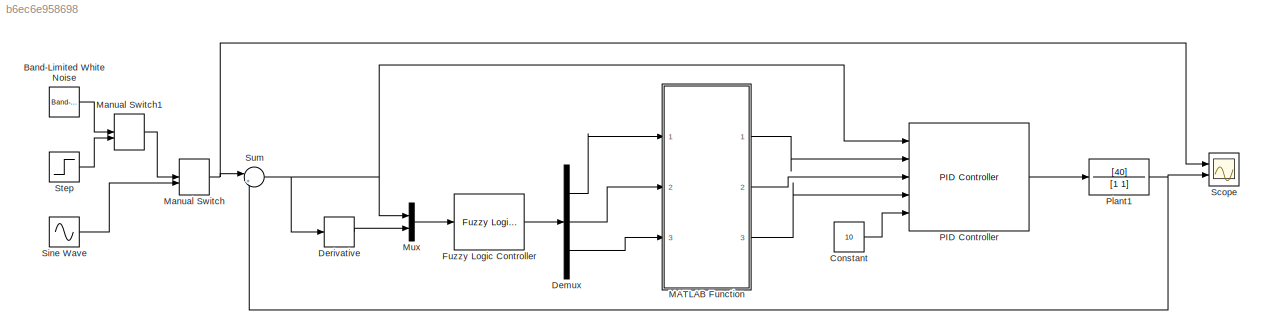
MODEL slx_b6ec6e958698
KIND model
CONFIG AbsTol = auto
CONFIG EnableMultiTasking = off
CONFIG FixedStep = auto
CONFIG MaxStep = auto
CONFIG MinStep = auto
CONFIG RelTol = 1e-3
CONFIG SampleTimeConstraint = Unconstrained
CONFIG SolverName = VariableStepAuto
CONFIG StartTime = 0.0
CONFIG StopTime = 10
BLOCK [Reference] Band-Limited White Noise  REF=simulink/Sources/Band-Limited
White Noise
  Ports = [0, 1]
  SourceBlock = simulink/Sources/Band-Limited\nWhite Noise
  SourceProductBaseCode = SL
  SourceType = Band-Limited White Noise.
BLOCK [Constant] Constant
  Value = 10
BLOCK [Demux] Demux
  Outputs = 3
  Ports = [1, 3]
BLOCK [Derivative] Derivative
BLOCK [Reference] Fuzzy Logic Controller  REF=fuzblock/Fuzzy Logic   (lib defined in mdl_858b3b3e7478)
Controller
  Ports = [1, 1]
  SourceBlock = fuzblock/Fuzzy Logic \nController
  SourceProductBaseCode = FL
  SourceType = Fuzzy Inference System
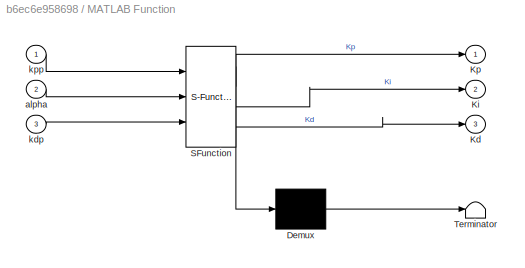
BLOCK [SubSystem] MATLAB Function
  ErrorFcn = Stateflow.Translate.translate
  PermitHierarchicalResolution = ExplicitOnly
  Ports = [3, 3]
  RequestExecContextInheritance = off
  SFBlockType = MATLAB Function
  TreatAsAtomicUnit = on
BLOCK [Demux] MATLAB Function/ Demux 
  Outputs = 1
  Ports = [1, 1]
BLOCK [S-Function] MATLAB Function/ SFunction 
  EnableBusSupport = on
  FunctionName = sf_sfun
  PortCounts = [3 4]
  Ports = [3, 4]
  SFcnIsStateOwnerBlock = off
  SFunctionDeploymentMode = off
  Tag = Stateflow S-Function 2
BLOCK [Terminator] MATLAB Function/ Terminator 
BLOCK [Outport] MATLAB Function/Kd
  Port = 3
BLOCK [Outport] MATLAB Function/Ki
  Port = 2
BLOCK [Outport] MATLAB Function/Kp
BLOCK [Inport] MATLAB Function/alpha
  Port = 2
BLOCK [Inport] MATLAB Function/kdp
  Port = 3
BLOCK [Inport] MATLAB Function/kpp
BLOCK [ManualSwitch] Manual Switch
BLOCK [ManualSwitch] Manual Switch1
  CurrentSetting = 0
BLOCK [Mux] Mux
  DisplayOption = bar
  Inputs = 2
  Ports = [2, 1]
BLOCK [Reference] PID Controller  REF=slpidlib/PID Controller
  Ports = [5, 1]
  SourceBlock = slpidlib/PID Controller
  SourceProductBaseCode = SL
  SourceType = PID 1dof
BLOCK [TransferFcn] Plant1
  Denominator = [1 1]
  Numerator = [40]
BLOCK [Scope] Scope
  Floating = off
  NumInputPorts = 2
  Ports = [2]
  ScopeSpecificationString = Simulink.scopes.TimeScopeBlockCfg('CurrentConfiguration', extmgr.ConfigurationSet(extmgr.Configuration('Core','General UI',true),extmgr.Configuration('Core','Source UI',true),extmgr.Configuration('Sources','WiredSimulink',true,'DataLoggingVariableName','ScopeData1'),extmgr.Configuration('Visuals','Time Domain',true,'SerializedDisplays',{struct('MinYLimReal','-1.8747','MaxYLimReal','1.87491','YLabe...<+1459ch>
BLOCK [Sin] Sine Wave
  Amplitude = 1.5
  Frequency = 1.5
  Ports = [0, 1]
  SampleTime = 0
BLOCK [Step] Step
  SampleTime = 0
BLOCK [Sum] Sum
  Inputs = |+-
  Ports = [2, 1]
LINE Band-Limited White Noise:1 -> Manual Switch1:1
LINE Constant:1 -> PID Controller:5
LINE Demux:1 -> MATLAB Function:1
LINE Demux:2 -> MATLAB Function:2
LINE Demux:3 -> MATLAB Function:3
LINE Derivative:1 -> Mux:2
LINE Fuzzy Logic Controller:1 -> Demux:1
LINE MATLAB Function:1 -> PID Controller:2
LINE MATLAB Function:2 -> PID Controller:3
LINE MATLAB Function:3 -> PID Controller:4
LINE Manual Switch1:1 -> Manual Switch:1
NET Manual Switch:1 -> Scope:1, Sum:1
LINE Mux:1 -> Fuzzy Logic Controller:1
LINE PID Controller:1 -> Plant1:1
NET Plant1:1 -> Scope:2, Sum:2
LINE Sine Wave:1 -> Manual Switch:2
LINE Step:1 -> Manual Switch1:2
NET Sum:1 -> Derivative:1, Mux:1, PID Controller:1
note: NET lines group one-source signal fan-out (src -> all destinations, sorted); 1:1 wires keep LINE
CHART MATLAB Function states=1 transitions=1
  STATE_LABEL 'eML_blk_kernel()'
  STATE_LABEL 'SCRIPT:\nfunction [Kp, Ki ,Kd] = invertor(kpp, alpha, kdp)\nKp = 5*kpp;\nKd = 5*kdp;\nKi = (Kp*Kp)/(alpha*Kd);\nend\n\n  \n'
CHART  states=0 transitions=0
